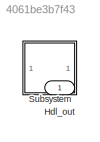
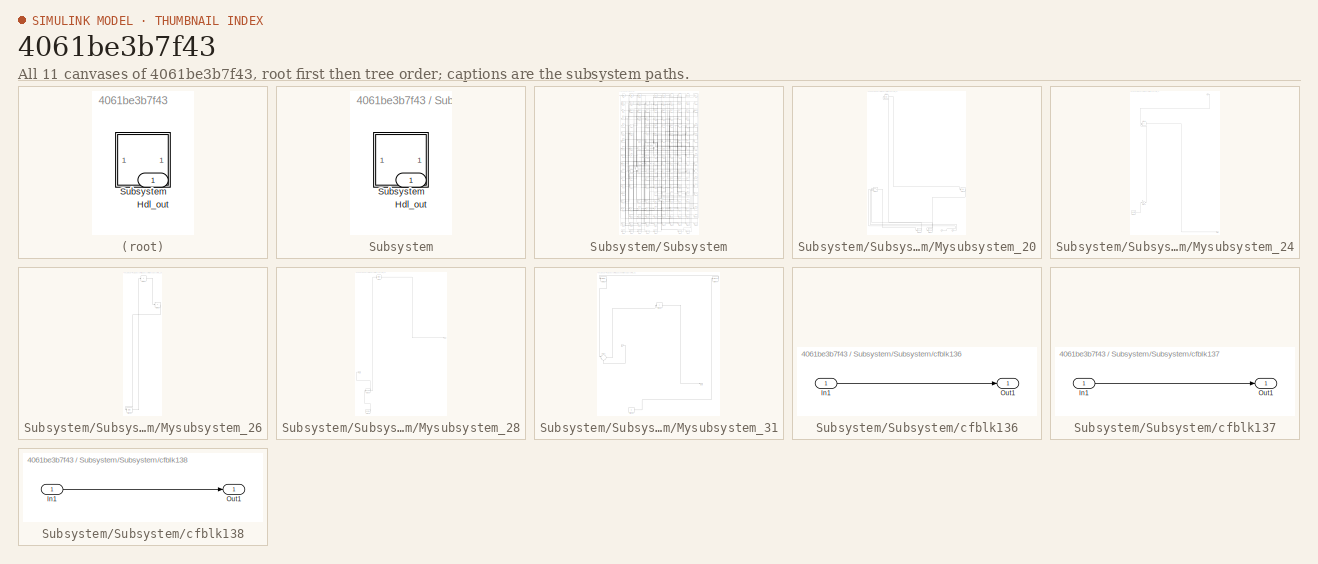
[diagram: thumbnail index - all 11 canvases of the model, root first then tree order]
MODEL slx_4061be3b7f43
KIND model
CONFIG AbsTol = auto
CONFIG EnableMultiTasking = off
CONFIG FixedStep = auto
CONFIG MaxStep = auto
CONFIG MinStep = auto
CONFIG RelTol = 1e-3
CONFIG SampleTimeConstraint = Unconstrained
CONFIG SolverName = VariableStepAuto
CONFIG StartTime = 0.0
CONFIG StopTime = 10.0
BLOCK [Outport] Hdl_out
  OutDataTypeStr = uint8
BLOCK [SubSystem] Subsystem
BLOCK [Outport] Subsystem/Hdl_out
  OutDataTypeStr = uint8
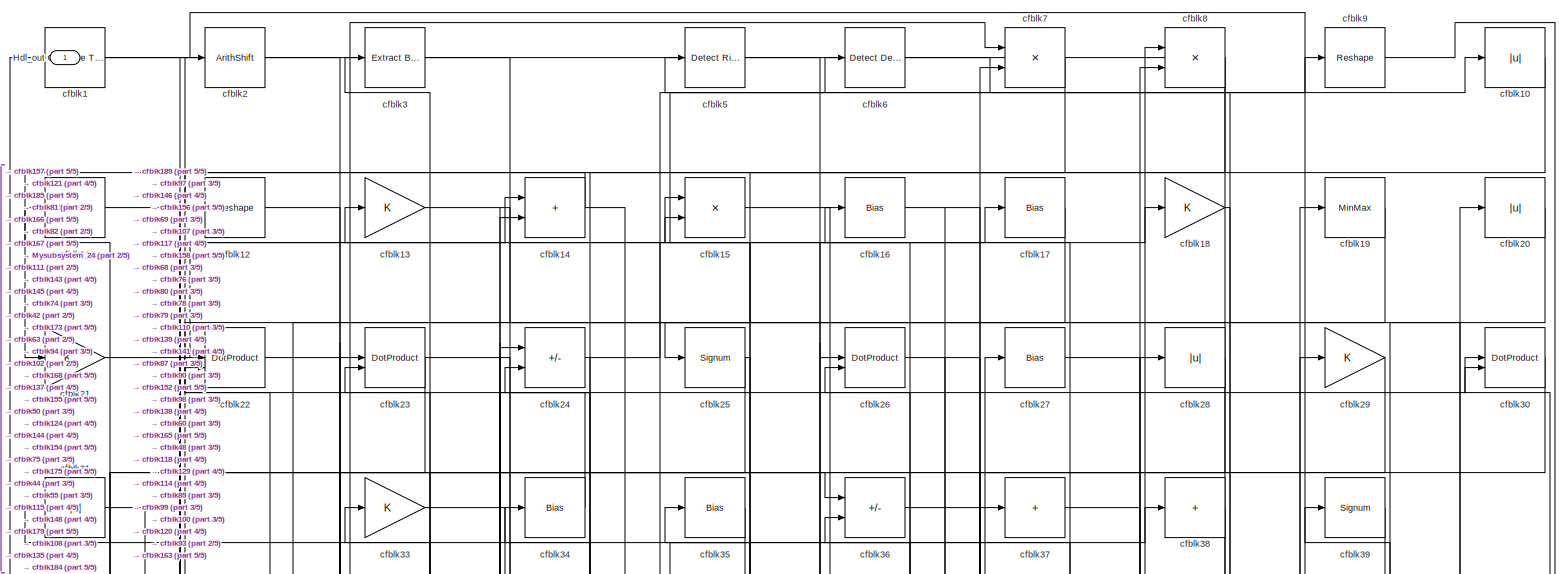
[diagram: Subsystem/Subsystem - part 1/5, full width, top band]
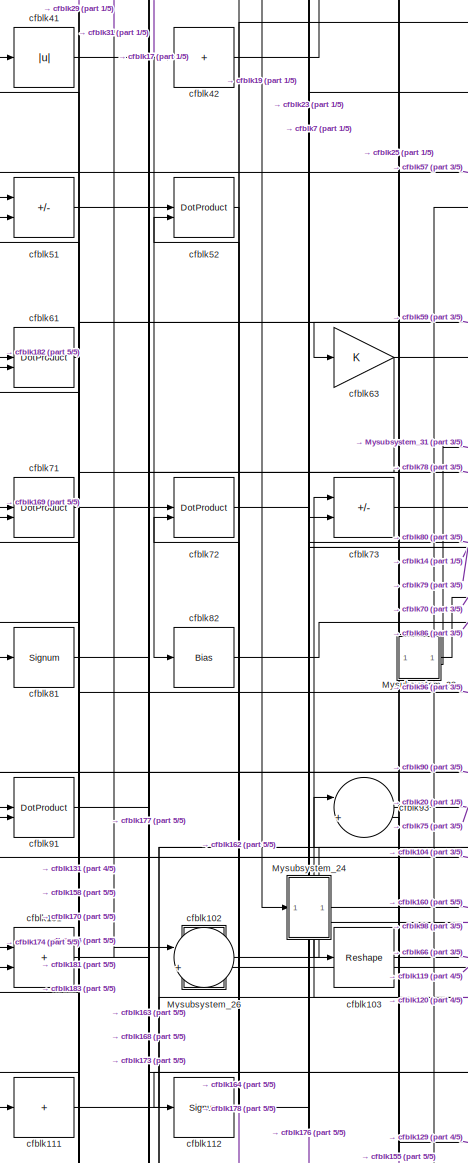
[diagram: Subsystem/Subsystem - part 2/5, middle left region]
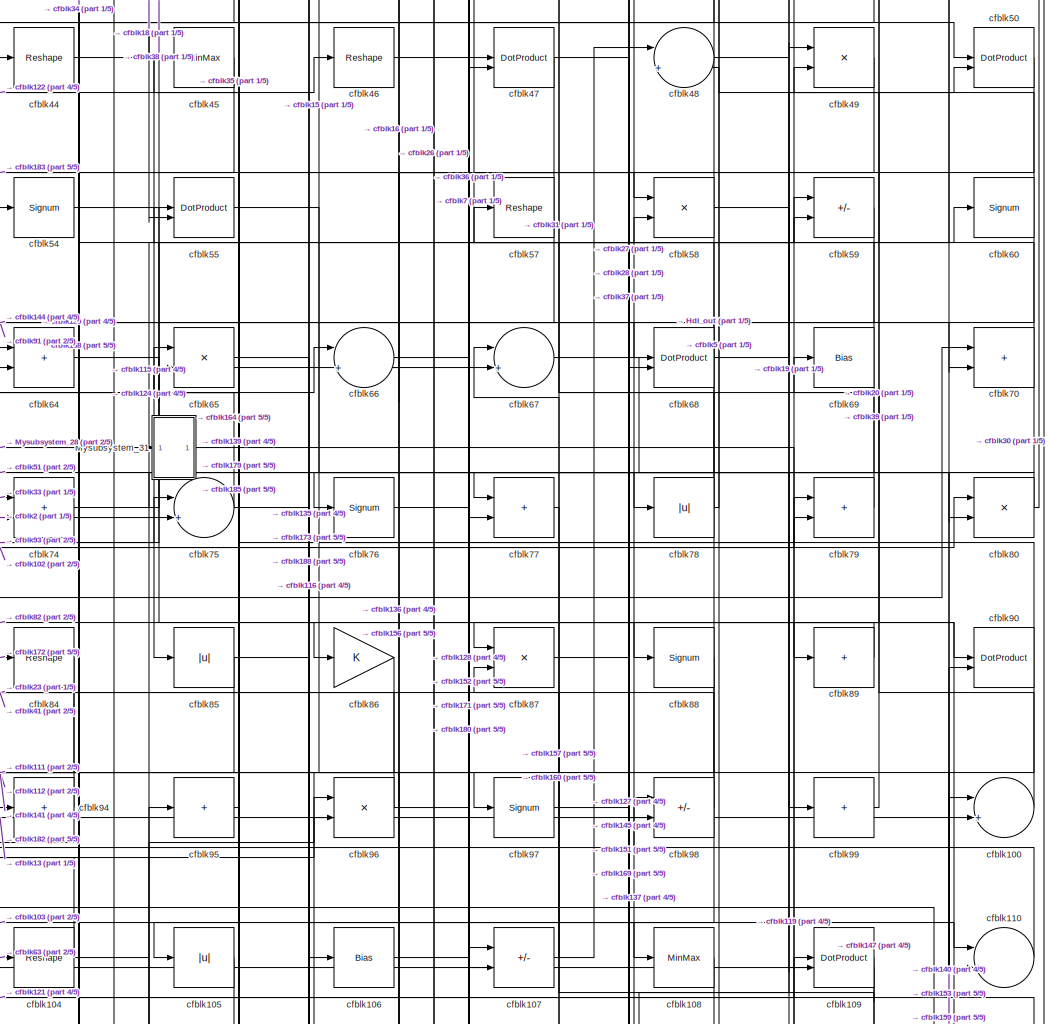
[diagram: Subsystem/Subsystem - part 3/5, central region]
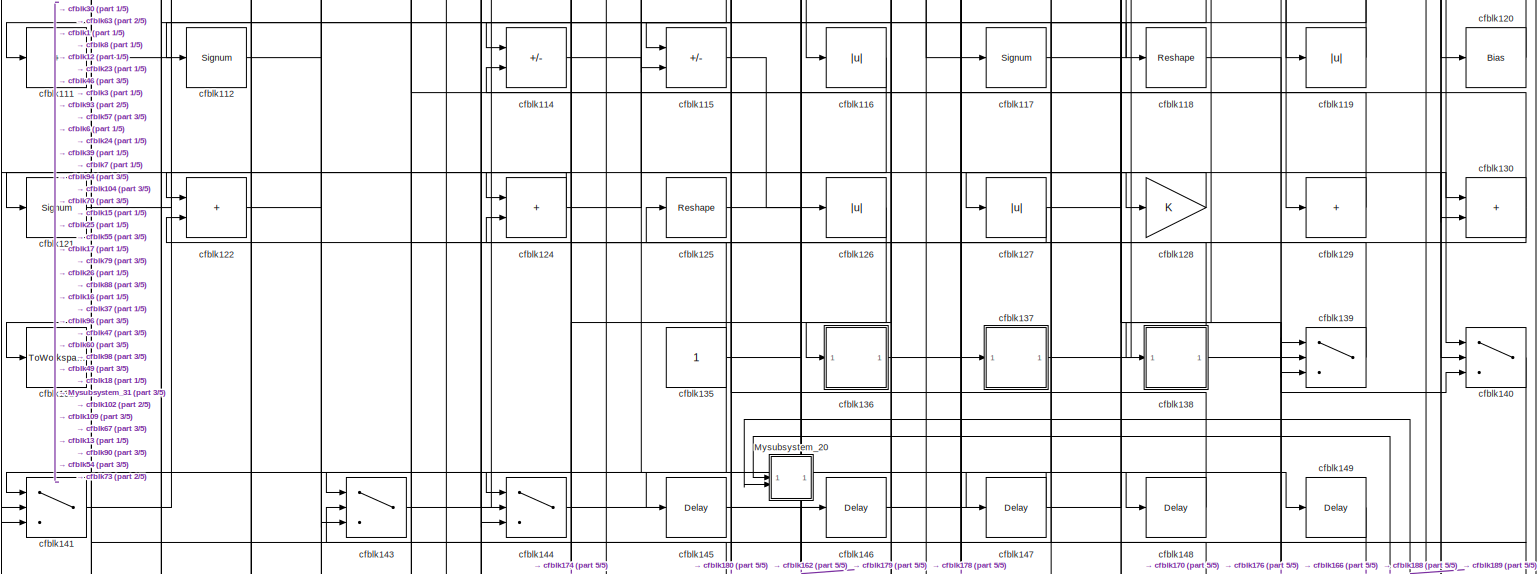
[diagram: Subsystem/Subsystem - part 4/5, full width, bottom band]
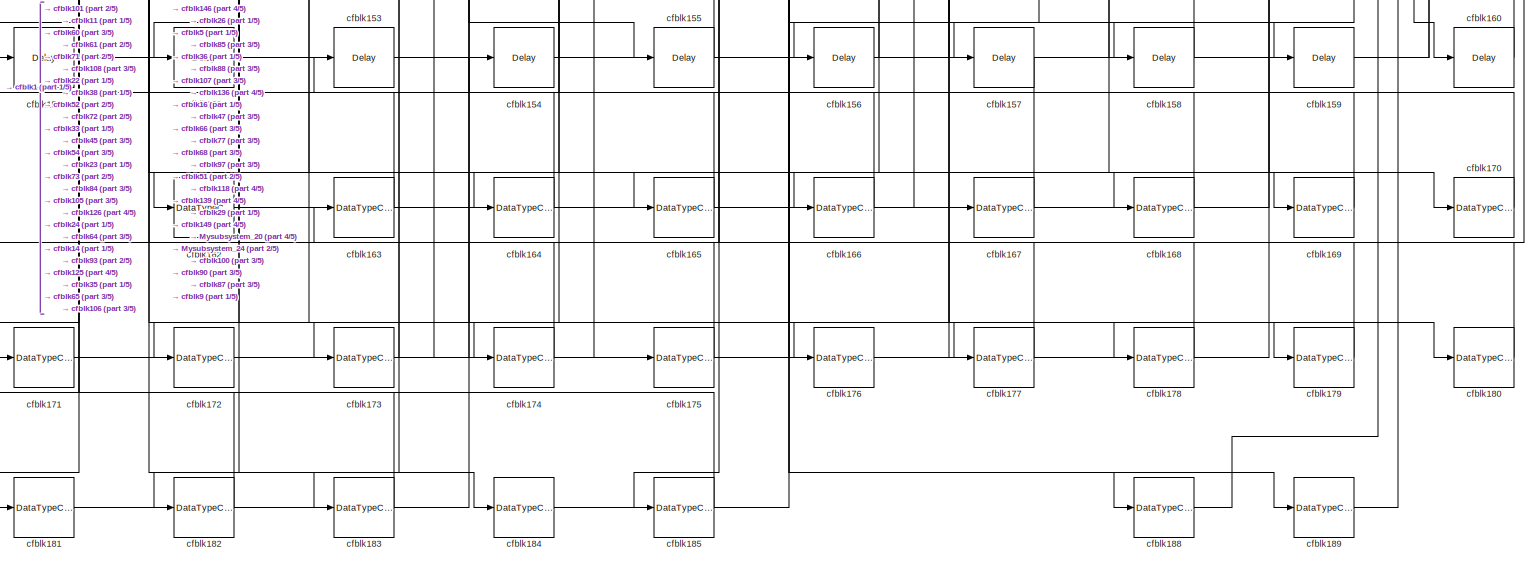
[diagram: Subsystem/Subsystem - part 5/5, full width, bottom band]
BLOCK [SubSystem] Subsystem/Subsystem
BLOCK [Outport] Subsystem/Subsystem/Hdl_out
  OutDataTypeStr = uint8
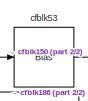
[diagram: Subsystem/Subsystem/Mysubsystem_20 - part 1/2, top left region]
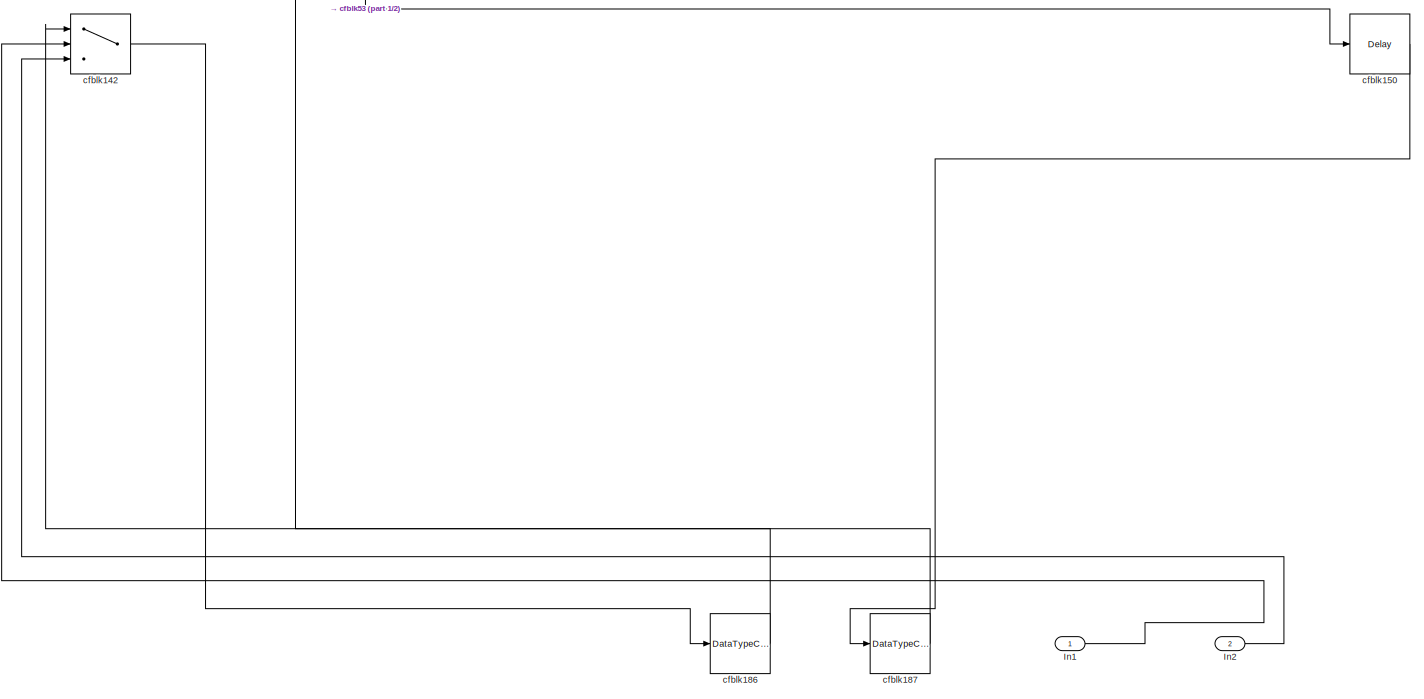
[diagram: Subsystem/Subsystem/Mysubsystem_20 - part 2/2, full width, bottom band]
BLOCK [SubSystem] Subsystem/Subsystem/Mysubsystem_20
  RTWFcnName = Mysubsystem_20
  RTWFcnNameOpts = User specified
  RTWFileNameOpts = Use function name
  RTWSystemCode = Reusable function
  TreatAsAtomicUnit = on
BLOCK [Inport] Subsystem/Subsystem/Mysubsystem_20/In1
BLOCK [Inport] Subsystem/Subsystem/Mysubsystem_20/In2
  Port = 2
BLOCK [Switch] Subsystem/Subsystem/Mysubsystem_20/cfblk142
  InputSameDT = off
  SaturateOnIntegerOverflow = off
BLOCK [Delay] Subsystem/Subsystem/Mysubsystem_20/cfblk150
  InputPortMap = u0
  SampleTime = 1
BLOCK [DataTypeConversion] Subsystem/Subsystem/Mysubsystem_20/cfblk186
  OutDataTypeStr = uint8
  RndMeth = Floor
  SaturateOnIntegerOverflow = off
BLOCK [DataTypeConversion] Subsystem/Subsystem/Mysubsystem_20/cfblk187
  OutDataTypeStr = uint8
  RndMeth = Floor
  SaturateOnIntegerOverflow = off
BLOCK [Bias] Subsystem/Subsystem/Mysubsystem_20/cfblk53
  Bias = 0.0
  SaturateOnIntegerOverflow = off
BLOCK [SubSystem] Subsystem/Subsystem/Mysubsystem_24
  RTWFcnName = Mysubsystem_24
  RTWFcnNameOpts = User specified
  RTWFileNameOpts = Use function name
  RTWSystemCode = Reusable function
  TreatAsAtomicUnit = on
BLOCK [Inport] Subsystem/Subsystem/Mysubsystem_24/In1
BLOCK [Outport] Subsystem/Subsystem/Mysubsystem_24/Out1
BLOCK [Gain] Subsystem/Subsystem/Mysubsystem_24/cfblk123
BLOCK [Reference] Subsystem/Subsystem/Mysubsystem_24/cfblk132  REF=hdlsllib/Sources/Counter
Free-Running
  SourceBlock = hdlsllib/Sources/Counter\nFree-Running
  SourceType = Counter Free-Running
BLOCK [Sum] Subsystem/Subsystem/Mysubsystem_24/cfblk43
  IconShape = rectangular
BLOCK [SubSystem] Subsystem/Subsystem/Mysubsystem_26
  RTWFcnName = Mysubsystem_26
  RTWFcnNameOpts = User specified
  RTWFileNameOpts = Use function name
  RTWSystemCode = Reusable function
  TreatAsAtomicUnit = on
BLOCK [Delay] Subsystem/Subsystem/Mysubsystem_26/cfblk161
  InputPortMap = u0
  SampleTime = 1
BLOCK [Sum] Subsystem/Subsystem/Mysubsystem_26/cfblk62
  IconShape = rectangular
  Inputs = +
BLOCK [Sum] Subsystem/Subsystem/Mysubsystem_26/cfblk83
  IconShape = rectangular
  Inputs = +
BLOCK [SubSystem] Subsystem/Subsystem/Mysubsystem_28
  RTWFcnName = Mysubsystem_28
  RTWFcnNameOpts = User specified
  RTWFileNameOpts = Use function name
  RTWSystemCode = Reusable function
  TreatAsAtomicUnit = on
BLOCK [Outport] Subsystem/Subsystem/Mysubsystem_28/Out2
  Port = 2
BLOCK [Reshape] Subsystem/Subsystem/Mysubsystem_28/cfblk113
BLOCK [Reference] Subsystem/Subsystem/Mysubsystem_28/cfblk133  REF=hdlsllib/Sources/Counter
Limited
  SourceBlock = hdlsllib/Sources/Counter\nLimited
  SourceType = Counter Limited
BLOCK [Reference] Subsystem/Subsystem/Mysubsystem_28/cfblk4  REF=hdlsllib/Logic and Bit
Operations/Bit Slice
  SourceBlock = hdlsllib/Logic and Bit\nOperations/Bit Slice
  SourceType = Bit Slice
BLOCK [Outport] Subsystem/Subsystem/Mysubsystem_28/y
BLOCK [SubSystem] Subsystem/Subsystem/Mysubsystem_31
  RTWFcnName = Mysubsystem_31
  RTWFcnNameOpts = User specified
  RTWFileNameOpts = Use function name
  RTWSystemCode = Reusable function
  TreatAsAtomicUnit = on
BLOCK [Inport] Subsystem/Subsystem/Mysubsystem_31/In1
BLOCK [Outport] Subsystem/Subsystem/Mysubsystem_31/Out1
BLOCK [Constant] Subsystem/Subsystem/Mysubsystem_31/cfblk134
  SampleTime = -1
BLOCK [MinMax] Subsystem/Subsystem/Mysubsystem_31/cfblk32
BLOCK [Signum] Subsystem/Subsystem/Mysubsystem_31/cfblk40
BLOCK [Sum] Subsystem/Subsystem/Mysubsystem_31/cfblk56
  IconShape = rectangular
  Inputs = +
BLOCK [Sum] Subsystem/Subsystem/Mysubsystem_31/cfblk92
  Inputs = |++
BLOCK [Reference] Subsystem/Subsystem/cfblk1  REF=hdlsllib/Logic and Bit
Operations/Compare
To Zero
  SourceBlock = hdlsllib/Logic and Bit\nOperations/Compare\nTo Zero
  SourceType = Compare To Zero
BLOCK [Abs] Subsystem/Subsystem/cfblk10
  OutDataTypeStr = uint8
  SaturateOnIntegerOverflow = off
BLOCK [Sum] Subsystem/Subsystem/cfblk100
  Inputs = |++
  OutDataTypeStr = uint8
BLOCK [Sum] Subsystem/Subsystem/cfblk101
  IconShape = rectangular
  OutDataTypeStr = uint8
BLOCK [Sum] Subsystem/Subsystem/cfblk102
  Inputs = |++
  OutDataTypeStr = uint8
BLOCK [Reshape] Subsystem/Subsystem/cfblk103
BLOCK [Reshape] Subsystem/Subsystem/cfblk104
BLOCK [Abs] Subsystem/Subsystem/cfblk105
  OutDataTypeStr = uint8
  SaturateOnIntegerOverflow = off
BLOCK [Bias] Subsystem/Subsystem/cfblk106
  Bias = 0.0
  SaturateOnIntegerOverflow = off
BLOCK [Sum] Subsystem/Subsystem/cfblk107
  IconShape = rectangular
  Inputs = +-
  OutDataTypeStr = uint8
BLOCK [MinMax] Subsystem/Subsystem/cfblk108
  OutDataTypeStr = uint8
BLOCK [DotProduct] Subsystem/Subsystem/cfblk109
  OutDataTypeStr = uint8
BLOCK [MinMax] Subsystem/Subsystem/cfblk11
  OutDataTypeStr = uint8
BLOCK [Sum] Subsystem/Subsystem/cfblk110
  Inputs = |++
  OutDataTypeStr = uint8
BLOCK [Sum] Subsystem/Subsystem/cfblk111
  IconShape = rectangular
  Inputs = +
  OutDataTypeStr = uint8
BLOCK [Signum] Subsystem/Subsystem/cfblk112
BLOCK [Sum] Subsystem/Subsystem/cfblk114
  IconShape = rectangular
  Inputs = +-
  OutDataTypeStr = uint8
BLOCK [Sum] Subsystem/Subsystem/cfblk115
  IconShape = rectangular
  Inputs = +-
  OutDataTypeStr = uint8
BLOCK [Abs] Subsystem/Subsystem/cfblk116
  OutDataTypeStr = uint8
  SaturateOnIntegerOverflow = off
BLOCK [Signum] Subsystem/Subsystem/cfblk117
BLOCK [Reshape] Subsystem/Subsystem/cfblk118
BLOCK [Abs] Subsystem/Subsystem/cfblk119
  OutDataTypeStr = uint8
  SaturateOnIntegerOverflow = off
BLOCK [Reshape] Subsystem/Subsystem/cfblk12
BLOCK [Bias] Subsystem/Subsystem/cfblk120
  Bias = 0.0
  SaturateOnIntegerOverflow = off
BLOCK [Signum] Subsystem/Subsystem/cfblk121
BLOCK [Sum] Subsystem/Subsystem/cfblk122
  IconShape = rectangular
  OutDataTypeStr = uint8
BLOCK [Sum] Subsystem/Subsystem/cfblk124
  IconShape = rectangular
  OutDataTypeStr = uint8
BLOCK [Reshape] Subsystem/Subsystem/cfblk125
BLOCK [Abs] Subsystem/Subsystem/cfblk126
  OutDataTypeStr = uint8
  SaturateOnIntegerOverflow = off
BLOCK [Abs] Subsystem/Subsystem/cfblk127
  OutDataTypeStr = uint8
  SaturateOnIntegerOverflow = off
BLOCK [Gain] Subsystem/Subsystem/cfblk128
  OutDataTypeStr = uint8
BLOCK [Sum] Subsystem/Subsystem/cfblk129
  IconShape = rectangular
  Inputs = +
  OutDataTypeStr = uint8
BLOCK [Gain] Subsystem/Subsystem/cfblk13
  OutDataTypeStr = uint8
BLOCK [Sum] Subsystem/Subsystem/cfblk130
  IconShape = rectangular
  OutDataTypeStr = uint8
BLOCK [ToWorkspace] Subsystem/Subsystem/cfblk131
  MaxDataPoints = inf
  SampleTime = -1
  SaveFormat = Timeseries
  VariableName = simout
BLOCK [Constant] Subsystem/Subsystem/cfblk135
  OutDataTypeStr = uint8
  SampleTime = -1
BLOCK [SubSystem] Subsystem/Subsystem/cfblk136
  LibrarySourceBlock = hdlsllib/Ports &\nSubsystems/Subsystem
BLOCK [Inport] Subsystem/Subsystem/cfblk136/In1
BLOCK [Outport] Subsystem/Subsystem/cfblk136/Out1
BLOCK [SubSystem] Subsystem/Subsystem/cfblk137
  LibrarySourceBlock = hdlsllib/Ports &\nSubsystems/Subsystem
BLOCK [Inport] Subsystem/Subsystem/cfblk137/In1
BLOCK [Outport] Subsystem/Subsystem/cfblk137/Out1
BLOCK [SubSystem] Subsystem/Subsystem/cfblk138
  LibrarySourceBlock = hdlsllib/Ports &\nSubsystems/Subsystem
BLOCK [Inport] Subsystem/Subsystem/cfblk138/In1
BLOCK [Outport] Subsystem/Subsystem/cfblk138/Out1
BLOCK [Switch] Subsystem/Subsystem/cfblk139
  InputSameDT = off
  OutDataTypeStr = uint8
  SaturateOnIntegerOverflow = off
BLOCK [Sum] Subsystem/Subsystem/cfblk14
  IconShape = rectangular
  OutDataTypeStr = uint8
BLOCK [Switch] Subsystem/Subsystem/cfblk140
  InputSameDT = off
  OutDataTypeStr = uint8
  SaturateOnIntegerOverflow = off
BLOCK [Switch] Subsystem/Subsystem/cfblk141
  InputSameDT = off
  OutDataTypeStr = uint8
  SaturateOnIntegerOverflow = off
BLOCK [Switch] Subsystem/Subsystem/cfblk143
  InputSameDT = off
  OutDataTypeStr = uint8
  SaturateOnIntegerOverflow = off
BLOCK [Switch] Subsystem/Subsystem/cfblk144
  InputSameDT = off
  OutDataTypeStr = uint8
  SaturateOnIntegerOverflow = off
BLOCK [Delay] Subsystem/Subsystem/cfblk145
  InputPortMap = u0
  SampleTime = 1
BLOCK [Delay] Subsystem/Subsystem/cfblk146
  InputPortMap = u0
  SampleTime = 1
BLOCK [Delay] Subsystem/Subsystem/cfblk147
  InputPortMap = u0
  SampleTime = 1
BLOCK [Delay] Subsystem/Subsystem/cfblk148
  InputPortMap = u0
  SampleTime = 1
BLOCK [Delay] Subsystem/Subsystem/cfblk149
  InputPortMap = u0
  SampleTime = 1
BLOCK [Product] Subsystem/Subsystem/cfblk15
  Inputs = */
  OutDataTypeStr = uint8
  RndMeth = Zero
  SaturateOnIntegerOverflow = on
BLOCK [Delay] Subsystem/Subsystem/cfblk151
  InputPortMap = u0
  SampleTime = 1
BLOCK [Delay] Subsystem/Subsystem/cfblk152
  InputPortMap = u0
  SampleTime = 1
BLOCK [Delay] Subsystem/Subsystem/cfblk153
  InputPortMap = u0
  SampleTime = 1
BLOCK [Delay] Subsystem/Subsystem/cfblk154
  InputPortMap = u0
  SampleTime = 1
BLOCK [Delay] Subsystem/Subsystem/cfblk155
  InputPortMap = u0
  SampleTime = 1
BLOCK [Delay] Subsystem/Subsystem/cfblk156
  InputPortMap = u0
  SampleTime = 1
BLOCK [Delay] Subsystem/Subsystem/cfblk157
  InputPortMap = u0
  SampleTime = 1
BLOCK [Delay] Subsystem/Subsystem/cfblk158
  InputPortMap = u0
  SampleTime = 1
BLOCK [Delay] Subsystem/Subsystem/cfblk159
  InputPortMap = u0
  SampleTime = 1
BLOCK [Bias] Subsystem/Subsystem/cfblk16
  Bias = 0.0
  SaturateOnIntegerOverflow = off
BLOCK [Delay] Subsystem/Subsystem/cfblk160
  InputPortMap = u0
  SampleTime = 1
BLOCK [DataTypeConversion] Subsystem/Subsystem/cfblk162
  OutDataTypeStr = uint8
  RndMeth = Floor
  SaturateOnIntegerOverflow = off
BLOCK [DataTypeConversion] Subsystem/Subsystem/cfblk163
  OutDataTypeStr = uint8
  RndMeth = Floor
  SaturateOnIntegerOverflow = off
BLOCK [DataTypeConversion] Subsystem/Subsystem/cfblk164
  OutDataTypeStr = uint8
  RndMeth = Floor
  SaturateOnIntegerOverflow = off
BLOCK [DataTypeConversion] Subsystem/Subsystem/cfblk165
  OutDataTypeStr = uint8
  RndMeth = Floor
  SaturateOnIntegerOverflow = off
BLOCK [DataTypeConversion] Subsystem/Subsystem/cfblk166
  OutDataTypeStr = uint8
  RndMeth = Floor
  SaturateOnIntegerOverflow = off
BLOCK [DataTypeConversion] Subsystem/Subsystem/cfblk167
  OutDataTypeStr = uint8
  RndMeth = Floor
  SaturateOnIntegerOverflow = off
BLOCK [DataTypeConversion] Subsystem/Subsystem/cfblk168
  OutDataTypeStr = uint8
  RndMeth = Floor
  SaturateOnIntegerOverflow = off
BLOCK [DataTypeConversion] Subsystem/Subsystem/cfblk169
  OutDataTypeStr = uint8
  RndMeth = Floor
  SaturateOnIntegerOverflow = off
BLOCK [Bias] Subsystem/Subsystem/cfblk17
  Bias = 0.0
  SaturateOnIntegerOverflow = off
BLOCK [DataTypeConversion] Subsystem/Subsystem/cfblk170
  OutDataTypeStr = uint8
  RndMeth = Floor
  SaturateOnIntegerOverflow = off
BLOCK [DataTypeConversion] Subsystem/Subsystem/cfblk171
  OutDataTypeStr = uint8
  RndMeth = Floor
  SaturateOnIntegerOverflow = off
BLOCK [DataTypeConversion] Subsystem/Subsystem/cfblk172
  OutDataTypeStr = uint8
  RndMeth = Floor
  SaturateOnIntegerOverflow = off
BLOCK [DataTypeConversion] Subsystem/Subsystem/cfblk173
  OutDataTypeStr = uint8
  RndMeth = Floor
  SaturateOnIntegerOverflow = off
BLOCK [DataTypeConversion] Subsystem/Subsystem/cfblk174
  OutDataTypeStr = uint8
  RndMeth = Floor
  SaturateOnIntegerOverflow = off
BLOCK [DataTypeConversion] Subsystem/Subsystem/cfblk175
  OutDataTypeStr = uint8
  RndMeth = Floor
  SaturateOnIntegerOverflow = off
BLOCK [DataTypeConversion] Subsystem/Subsystem/cfblk176
  OutDataTypeStr = uint8
  RndMeth = Floor
  SaturateOnIntegerOverflow = off
BLOCK [DataTypeConversion] Subsystem/Subsystem/cfblk177
  OutDataTypeStr = uint8
  RndMeth = Floor
  SaturateOnIntegerOverflow = off
BLOCK [DataTypeConversion] Subsystem/Subsystem/cfblk178
  OutDataTypeStr = uint8
  RndMeth = Floor
  SaturateOnIntegerOverflow = off
BLOCK [DataTypeConversion] Subsystem/Subsystem/cfblk179
  OutDataTypeStr = uint8
  RndMeth = Floor
  SaturateOnIntegerOverflow = off
BLOCK [Gain] Subsystem/Subsystem/cfblk18
  OutDataTypeStr = uint8
BLOCK [DataTypeConversion] Subsystem/Subsystem/cfblk180
  OutDataTypeStr = uint8
  RndMeth = Floor
  SaturateOnIntegerOverflow = off
BLOCK [DataTypeConversion] Subsystem/Subsystem/cfblk181
  OutDataTypeStr = uint8
  RndMeth = Floor
  SaturateOnIntegerOverflow = off
BLOCK [DataTypeConversion] Subsystem/Subsystem/cfblk182
  OutDataTypeStr = uint8
  RndMeth = Floor
  SaturateOnIntegerOverflow = off
BLOCK [DataTypeConversion] Subsystem/Subsystem/cfblk183
  OutDataTypeStr = uint8
  RndMeth = Floor
  SaturateOnIntegerOverflow = off
BLOCK [DataTypeConversion] Subsystem/Subsystem/cfblk184
  OutDataTypeStr = uint8
  RndMeth = Floor
  SaturateOnIntegerOverflow = off
BLOCK [DataTypeConversion] Subsystem/Subsystem/cfblk185
  OutDataTypeStr = uint8
  RndMeth = Floor
  SaturateOnIntegerOverflow = off
BLOCK [DataTypeConversion] Subsystem/Subsystem/cfblk188
  OutDataTypeStr = uint8
  RndMeth = Floor
  SaturateOnIntegerOverflow = off
BLOCK [DataTypeConversion] Subsystem/Subsystem/cfblk189
  OutDataTypeStr = uint8
  RndMeth = Floor
  SaturateOnIntegerOverflow = off
BLOCK [MinMax] Subsystem/Subsystem/cfblk19
  OutDataTypeStr = uint8
BLOCK [ArithShift] Subsystem/Subsystem/cfblk2
  BitShiftNumber = 8
  InputPortMap = u0
BLOCK [Abs] Subsystem/Subsystem/cfblk20
  OutDataTypeStr = uint8
  SaturateOnIntegerOverflow = off
BLOCK [Gain] Subsystem/Subsystem/cfblk21
  OutDataTypeStr = uint8
BLOCK [DotProduct] Subsystem/Subsystem/cfblk22
  OutDataTypeStr = uint8
BLOCK [DotProduct] Subsystem/Subsystem/cfblk23
  OutDataTypeStr = uint8
BLOCK [Sum] Subsystem/Subsystem/cfblk24
  IconShape = rectangular
  Inputs = +-
  OutDataTypeStr = uint8
BLOCK [Signum] Subsystem/Subsystem/cfblk25
BLOCK [DotProduct] Subsystem/Subsystem/cfblk26
  OutDataTypeStr = uint8
BLOCK [Bias] Subsystem/Subsystem/cfblk27
  Bias = 0.0
  SaturateOnIntegerOverflow = off
BLOCK [Abs] Subsystem/Subsystem/cfblk28
  OutDataTypeStr = uint8
  SaturateOnIntegerOverflow = off
BLOCK [Gain] Subsystem/Subsystem/cfblk29
  OutDataTypeStr = uint8
BLOCK [Reference] Subsystem/Subsystem/cfblk3  REF=simulink/Logic and Bit
Operations/Extract Bits
  LibrarySourceBlock = hdlsllib/Logic and Bit\nOperations/Extract Bits
  SourceBlock = simulink/Logic and Bit\nOperations/Extract Bits
  SourceType = Extract Bits
BLOCK [DotProduct] Subsystem/Subsystem/cfblk30
  OutDataTypeStr = uint8
BLOCK [Abs] Subsystem/Subsystem/cfblk31
  OutDataTypeStr = uint8
  SaturateOnIntegerOverflow = off
BLOCK [Gain] Subsystem/Subsystem/cfblk33
  OutDataTypeStr = uint8
BLOCK [Bias] Subsystem/Subsystem/cfblk34
  Bias = 0.0
  SaturateOnIntegerOverflow = off
BLOCK [Bias] Subsystem/Subsystem/cfblk35
  Bias = 0.0
  SaturateOnIntegerOverflow = off
BLOCK [Sum] Subsystem/Subsystem/cfblk36
  IconShape = rectangular
  Inputs = +-
  OutDataTypeStr = uint8
BLOCK [Sum] Subsystem/Subsystem/cfblk37
  IconShape = rectangular
  Inputs = +
  OutDataTypeStr = uint8
BLOCK [Sum] Subsystem/Subsystem/cfblk38
  IconShape = rectangular
  Inputs = +
  OutDataTypeStr = uint8
BLOCK [Signum] Subsystem/Subsystem/cfblk39
BLOCK [Abs] Subsystem/Subsystem/cfblk41
  OutDataTypeStr = uint8
  SaturateOnIntegerOverflow = off
BLOCK [Sum] Subsystem/Subsystem/cfblk42
  IconShape = rectangular
  Inputs = +
  OutDataTypeStr = uint8
BLOCK [Reshape] Subsystem/Subsystem/cfblk44
BLOCK [MinMax] Subsystem/Subsystem/cfblk45
  OutDataTypeStr = uint8
BLOCK [Reshape] Subsystem/Subsystem/cfblk46
BLOCK [DotProduct] Subsystem/Subsystem/cfblk47
  OutDataTypeStr = uint8
BLOCK [Sum] Subsystem/Subsystem/cfblk48
  Inputs = |++
  OutDataTypeStr = uint8
BLOCK [Product] Subsystem/Subsystem/cfblk49
  Inputs = */
  OutDataTypeStr = uint8
  RndMeth = Zero
  SaturateOnIntegerOverflow = on
BLOCK [Reference] Subsystem/Subsystem/cfblk5  REF=hdlsllib/Logic and Bit
Operations/Detect Rise
Nonnegative
  SourceBlock = hdlsllib/Logic and Bit\nOperations/Detect Rise\nNonnegative
  SourceType = Detect Rise Nonnegative
BLOCK [DotProduct] Subsystem/Subsystem/cfblk50
  OutDataTypeStr = uint8
BLOCK [Sum] Subsystem/Subsystem/cfblk51
  IconShape = rectangular
  Inputs = +-
  OutDataTypeStr = uint8
BLOCK [DotProduct] Subsystem/Subsystem/cfblk52
  OutDataTypeStr = uint8
BLOCK [Signum] Subsystem/Subsystem/cfblk54
BLOCK [DotProduct] Subsystem/Subsystem/cfblk55
  OutDataTypeStr = uint8
BLOCK [Reshape] Subsystem/Subsystem/cfblk57
BLOCK [Product] Subsystem/Subsystem/cfblk58
  Inputs = */
  OutDataTypeStr = uint8
  RndMeth = Zero
  SaturateOnIntegerOverflow = on
BLOCK [Sum] Subsystem/Subsystem/cfblk59
  IconShape = rectangular
  Inputs = +-
  OutDataTypeStr = uint8
BLOCK [Reference] Subsystem/Subsystem/cfblk6  REF=simulink/Logic and Bit
Operations/Detect
Decrease
  LibrarySourceBlock = hdlsllib/Logic and Bit\nOperations/Detect\nDecrease
  SourceBlock = simulink/Logic and Bit\nOperations/Detect\nDecrease
  SourceType = Detect Decrease
BLOCK [Signum] Subsystem/Subsystem/cfblk60
BLOCK [DotProduct] Subsystem/Subsystem/cfblk61
  OutDataTypeStr = uint8
BLOCK [Gain] Subsystem/Subsystem/cfblk63
  OutDataTypeStr = uint8
BLOCK [Sum] Subsystem/Subsystem/cfblk64
  IconShape = rectangular
  OutDataTypeStr = uint8
BLOCK [Product] Subsystem/Subsystem/cfblk65
  Inputs = */
  OutDataTypeStr = uint8
  RndMeth = Zero
  SaturateOnIntegerOverflow = on
BLOCK [Sum] Subsystem/Subsystem/cfblk66
  Inputs = |++
  OutDataTypeStr = uint8
BLOCK [Sum] Subsystem/Subsystem/cfblk67
  Inputs = |++
  OutDataTypeStr = uint8
BLOCK [DotProduct] Subsystem/Subsystem/cfblk68
  OutDataTypeStr = uint8
BLOCK [Bias] Subsystem/Subsystem/cfblk69
  Bias = 0.0
  SaturateOnIntegerOverflow = off
BLOCK [Product] Subsystem/Subsystem/cfblk7
  Inputs = */
  OutDataTypeStr = uint8
  RndMeth = Zero
  SaturateOnIntegerOverflow = on
BLOCK [Sum] Subsystem/Subsystem/cfblk70
  IconShape = rectangular
  OutDataTypeStr = uint8
BLOCK [DotProduct] Subsystem/Subsystem/cfblk71
  OutDataTypeStr = uint8
BLOCK [DotProduct] Subsystem/Subsystem/cfblk72
  OutDataTypeStr = uint8
BLOCK [Sum] Subsystem/Subsystem/cfblk73
  IconShape = rectangular
  Inputs = +-
  OutDataTypeStr = uint8
BLOCK [Sum] Subsystem/Subsystem/cfblk74
  IconShape = rectangular
  OutDataTypeStr = uint8
BLOCK [Sum] Subsystem/Subsystem/cfblk75
  Inputs = |++
  OutDataTypeStr = uint8
BLOCK [Signum] Subsystem/Subsystem/cfblk76
BLOCK [Sum] Subsystem/Subsystem/cfblk77
  IconShape = rectangular
  OutDataTypeStr = uint8
BLOCK [Abs] Subsystem/Subsystem/cfblk78
  OutDataTypeStr = uint8
  SaturateOnIntegerOverflow = off
BLOCK [Sum] Subsystem/Subsystem/cfblk79
  IconShape = rectangular
  OutDataTypeStr = uint8
BLOCK [Product] Subsystem/Subsystem/cfblk8
  Inputs = */
  OutDataTypeStr = uint8
  RndMeth = Zero
  SaturateOnIntegerOverflow = on
BLOCK [Product] Subsystem/Subsystem/cfblk80
  Inputs = */
  OutDataTypeStr = uint8
  RndMeth = Zero
  SaturateOnIntegerOverflow = on
BLOCK [Signum] Subsystem/Subsystem/cfblk81
BLOCK [Bias] Subsystem/Subsystem/cfblk82
  Bias = 0.0
  SaturateOnIntegerOverflow = off
BLOCK [Reshape] Subsystem/Subsystem/cfblk84
BLOCK [Abs] Subsystem/Subsystem/cfblk85
  OutDataTypeStr = uint8
  SaturateOnIntegerOverflow = off
BLOCK [Gain] Subsystem/Subsystem/cfblk86
  OutDataTypeStr = uint8
BLOCK [Product] Subsystem/Subsystem/cfblk87
  Inputs = */
  OutDataTypeStr = uint8
  RndMeth = Zero
  SaturateOnIntegerOverflow = on
BLOCK [Signum] Subsystem/Subsystem/cfblk88
BLOCK [Sum] Subsystem/Subsystem/cfblk89
  IconShape = rectangular
  Inputs = +
  OutDataTypeStr = uint8
BLOCK [Reshape] Subsystem/Subsystem/cfblk9
BLOCK [DotProduct] Subsystem/Subsystem/cfblk90
  OutDataTypeStr = uint8
BLOCK [DotProduct] Subsystem/Subsystem/cfblk91
  OutDataTypeStr = uint8
BLOCK [Sum] Subsystem/Subsystem/cfblk93
  Inputs = |++
  OutDataTypeStr = uint8
BLOCK [Sum] Subsystem/Subsystem/cfblk94
  IconShape = rectangular
  Inputs = +
  OutDataTypeStr = uint8
BLOCK [Sum] Subsystem/Subsystem/cfblk95
  IconShape = rectangular
  Inputs = +
  OutDataTypeStr = uint8
BLOCK [Product] Subsystem/Subsystem/cfblk96
  Inputs = */
  OutDataTypeStr = uint8
  RndMeth = Zero
  SaturateOnIntegerOverflow = on
BLOCK [Signum] Subsystem/Subsystem/cfblk97
BLOCK [Sum] Subsystem/Subsystem/cfblk98
  IconShape = rectangular
  Inputs = +-
  OutDataTypeStr = uint8
BLOCK [Sum] Subsystem/Subsystem/cfblk99
  IconShape = rectangular
  Inputs = +
  OutDataTypeStr = uint8
LINE Subsystem/Subsystem/Mysubsystem_20/In1:1 -> Subsystem/Subsystem/Mysubsystem_20/cfblk142:2
LINE Subsystem/Subsystem/Mysubsystem_20/In2:1 -> Subsystem/Subsystem/Mysubsystem_20/cfblk142:3
LINE Subsystem/Subsystem/Mysubsystem_20/cfblk142:1 -> Subsystem/Subsystem/Mysubsystem_20/cfblk186:1
LINE Subsystem/Subsystem/Mysubsystem_20/cfblk150:1 -> Subsystem/Subsystem/Mysubsystem_20/cfblk187:1
LINE Subsystem/Subsystem/Mysubsystem_20/cfblk186:1 -> Subsystem/Subsystem/Mysubsystem_20/cfblk53:1
LINE Subsystem/Subsystem/Mysubsystem_20/cfblk187:1 -> Subsystem/Subsystem/Mysubsystem_20/cfblk142:1
LINE Subsystem/Subsystem/Mysubsystem_20/cfblk53:1 -> Subsystem/Subsystem/Mysubsystem_20/cfblk150:1
LINE Subsystem/Subsystem/Mysubsystem_24/In1:1 -> Subsystem/Subsystem/Mysubsystem_24/cfblk43:1
LINE Subsystem/Subsystem/Mysubsystem_24/cfblk123:1 -> Subsystem/Subsystem/Mysubsystem_24/cfblk43:2
LINE Subsystem/Subsystem/Mysubsystem_24/cfblk132:1 -> Subsystem/Subsystem/Mysubsystem_24/cfblk123:1
LINE Subsystem/Subsystem/Mysubsystem_24/cfblk43:1 -> Subsystem/Subsystem/Mysubsystem_24/Out1:1
LINE Subsystem/Subsystem/Mysubsystem_24:1 -> Subsystem/Subsystem/cfblk160:1
LINE Subsystem/Subsystem/Mysubsystem_26/cfblk161:1 -> Subsystem/Subsystem/Mysubsystem_26/cfblk62:1
LINE Subsystem/Subsystem/Mysubsystem_26/cfblk62:1 -> Subsystem/Subsystem/Mysubsystem_26/cfblk83:1
LINE Subsystem/Subsystem/Mysubsystem_26/cfblk83:1 -> Subsystem/Subsystem/Mysubsystem_26/cfblk161:1
NET Subsystem/Subsystem/Mysubsystem_28/cfblk113:1 -> Subsystem/Subsystem/Mysubsystem_28/Out2:1, Subsystem/Subsystem/Mysubsystem_28/cfblk4:1
LINE Subsystem/Subsystem/Mysubsystem_28/cfblk133:1 -> Subsystem/Subsystem/Mysubsystem_28/cfblk113:1
LINE Subsystem/Subsystem/Mysubsystem_28/cfblk4:1 -> Subsystem/Subsystem/Mysubsystem_28/y:1
LINE Subsystem/Subsystem/Mysubsystem_28:1 -> Subsystem/Subsystem/cfblk70:1
LINE Subsystem/Subsystem/Mysubsystem_28:2 -> Subsystem/Subsystem/Mysubsystem_31:1
LINE Subsystem/Subsystem/Mysubsystem_31/In1:1 -> Subsystem/Subsystem/Mysubsystem_31/cfblk92:2
LINE Subsystem/Subsystem/Mysubsystem_31/cfblk134:1 -> Subsystem/Subsystem/Mysubsystem_31/cfblk40:1
LINE Subsystem/Subsystem/Mysubsystem_31/cfblk32:1 -> Subsystem/Subsystem/Mysubsystem_31/cfblk92:1
LINE Subsystem/Subsystem/Mysubsystem_31/cfblk40:1 -> Subsystem/Subsystem/Mysubsystem_31/cfblk32:1
LINE Subsystem/Subsystem/Mysubsystem_31/cfblk56:1 -> Subsystem/Subsystem/Mysubsystem_31/Out1:1
LINE Subsystem/Subsystem/Mysubsystem_31/cfblk92:1 -> Subsystem/Subsystem/Mysubsystem_31/cfblk56:1
LINE Subsystem/Subsystem/Mysubsystem_31:1 -> Subsystem/Subsystem/cfblk119:1
LINE Subsystem/Subsystem/cfblk100:1 -> Subsystem/Subsystem/cfblk69:1
LINE Subsystem/Subsystem/cfblk101:1 -> Subsystem/Subsystem/cfblk173:1
NET Subsystem/Subsystem/cfblk102:1 -> Subsystem/Subsystem/cfblk14:2, Subsystem/Subsystem/cfblk79:1
LINE Subsystem/Subsystem/cfblk103:1 -> Subsystem/Subsystem/cfblk66:1
NET Subsystem/Subsystem/cfblk104:1 -> Subsystem/Subsystem/cfblk130:1, Subsystem/Subsystem/cfblk130:2, Subsystem/Subsystem/cfblk91:2, Subsystem/Subsystem/cfblk95:1
LINE Subsystem/Subsystem/cfblk105:1 -> Subsystem/Subsystem/cfblk164:1
NET Subsystem/Subsystem/cfblk106:1 -> Subsystem/Subsystem/cfblk47:2, Subsystem/Subsystem/cfblk59:2
NET Subsystem/Subsystem/cfblk107:1 -> Subsystem/Subsystem/cfblk48:1, Subsystem/Subsystem/cfblk57:1
LINE Subsystem/Subsystem/cfblk108:1 -> Subsystem/Subsystem/cfblk172:1
LINE Subsystem/Subsystem/cfblk109:1 -> Subsystem/Subsystem/cfblk147:1
LINE Subsystem/Subsystem/cfblk10:1 -> Subsystem/Subsystem/cfblk25:1
LINE Subsystem/Subsystem/cfblk110:1 -> Subsystem/Subsystem/cfblk98:1
LINE Subsystem/Subsystem/cfblk111:1 -> Subsystem/Subsystem/cfblk23:1
NET Subsystem/Subsystem/cfblk112:1 -> Subsystem/Subsystem/cfblk75:1, Subsystem/Subsystem/cfblk80:1
LINE Subsystem/Subsystem/cfblk114:1 -> Subsystem/Subsystem/cfblk149:1
LINE Subsystem/Subsystem/cfblk115:1 -> Subsystem/Subsystem/cfblk126:1
LINE Subsystem/Subsystem/cfblk116:1 -> Subsystem/Subsystem/cfblk141:2
LINE Subsystem/Subsystem/cfblk117:1 -> Subsystem/Subsystem/cfblk8:1
LINE Subsystem/Subsystem/cfblk118:1 -> Subsystem/Subsystem/cfblk170:1
NET Subsystem/Subsystem/cfblk119:1 -> Subsystem/Subsystem/cfblk102:2, Subsystem/Subsystem/cfblk67:1
LINE Subsystem/Subsystem/cfblk11:1 -> Subsystem/Subsystem/cfblk184:1
LINE Subsystem/Subsystem/cfblk120:1 -> Subsystem/Subsystem/cfblk73:1
LINE Subsystem/Subsystem/cfblk121:1 -> Subsystem/Subsystem/cfblk109:1
LINE Subsystem/Subsystem/cfblk122:1 -> Subsystem/Subsystem/cfblk46:1
NET Subsystem/Subsystem/cfblk124:1 -> Subsystem/Subsystem/cfblk122:1, Subsystem/Subsystem/cfblk96:2
LINE Subsystem/Subsystem/cfblk125:1 -> Subsystem/Subsystem/cfblk179:1
LINE Subsystem/Subsystem/cfblk126:1 -> Subsystem/Subsystem/cfblk174:1
NET Subsystem/Subsystem/cfblk127:1 -> Subsystem/Subsystem/cfblk122:2, Subsystem/Subsystem/cfblk60:1
LINE Subsystem/Subsystem/cfblk128:1 -> Subsystem/Subsystem/cfblk127:1
LINE Subsystem/Subsystem/cfblk129:1 -> Subsystem/Subsystem/cfblk93:1
LINE Subsystem/Subsystem/cfblk12:1 -> Subsystem/Subsystem/cfblk145:1
NET Subsystem/Subsystem/cfblk130:1 -> Subsystem/Subsystem/cfblk124:2, Subsystem/Subsystem/cfblk94:1
NET Subsystem/Subsystem/cfblk135:1 -> Subsystem/Subsystem/cfblk114:2, Subsystem/Subsystem/cfblk143:1, Subsystem/Subsystem/cfblk144:3, Subsystem/Subsystem/cfblk17:1, Subsystem/Subsystem/cfblk79:2
LINE Subsystem/Subsystem/cfblk136/In1:1 -> Subsystem/Subsystem/cfblk136/Out1:1
NET Subsystem/Subsystem/cfblk136:1 -> Subsystem/Subsystem/cfblk148:1, Subsystem/Subsystem/cfblk178:1
LINE Subsystem/Subsystem/cfblk137/In1:1 -> Subsystem/Subsystem/cfblk137/Out1:1
LINE Subsystem/Subsystem/cfblk137:1 -> Subsystem/Subsystem/cfblk49:1
LINE Subsystem/Subsystem/cfblk138/In1:1 -> Subsystem/Subsystem/cfblk138/Out1:1
NET Subsystem/Subsystem/cfblk138:1 -> Subsystem/Subsystem/cfblk140:3, Subsystem/Subsystem/cfblk3:1
LINE Subsystem/Subsystem/cfblk139:1 -> Subsystem/Subsystem/cfblk55:1
NET Subsystem/Subsystem/cfblk13:1 -> Subsystem/Subsystem/cfblk100:2, Subsystem/Subsystem/cfblk120:1
LINE Subsystem/Subsystem/cfblk140:1 -> Subsystem/Subsystem/cfblk143:2
NET Subsystem/Subsystem/cfblk141:1 -> Subsystem/Subsystem/cfblk8:2, Subsystem/Subsystem/cfblk96:1
NET Subsystem/Subsystem/cfblk143:1 -> Subsystem/Subsystem/cfblk30:2, Subsystem/Subsystem/cfblk6:1
LINE Subsystem/Subsystem/cfblk144:1 -> Subsystem/Subsystem/cfblk37:1
LINE Subsystem/Subsystem/cfblk145:1 -> Subsystem/Subsystem/cfblk98:2
LINE Subsystem/Subsystem/cfblk146:1 -> Subsystem/Subsystem/cfblk26:2
LINE Subsystem/Subsystem/cfblk147:1 -> Subsystem/Subsystem/cfblk141:1
LINE Subsystem/Subsystem/cfblk148:1 -> Subsystem/Subsystem/cfblk15:2
LINE Subsystem/Subsystem/cfblk149:1 -> Subsystem/Subsystem/cfblk166:1
NET Subsystem/Subsystem/cfblk14:1 -> Subsystem/Subsystem/cfblk12:1, Subsystem/Subsystem/cfblk175:1
LINE Subsystem/Subsystem/cfblk151:1 -> Subsystem/Subsystem/cfblk68:2
LINE Subsystem/Subsystem/cfblk152:1 -> Subsystem/Subsystem/cfblk107:1
LINE Subsystem/Subsystem/cfblk153:1 -> Subsystem/Subsystem/cfblk90:2
LINE Subsystem/Subsystem/cfblk154:1 -> Subsystem/Subsystem/cfblk24:2
LINE Subsystem/Subsystem/cfblk155:1 -> Subsystem/Subsystem/cfblk93:2
LINE Subsystem/Subsystem/cfblk156:1 -> Subsystem/Subsystem/cfblk36:2
LINE Subsystem/Subsystem/cfblk157:1 -> Subsystem/Subsystem/cfblk1:1
LINE Subsystem/Subsystem/cfblk158:1 -> Subsystem/Subsystem/cfblk51:2
LINE Subsystem/Subsystem/cfblk159:1 -> Subsystem/Subsystem/cfblk100:1
LINE Subsystem/Subsystem/cfblk15:1 -> Subsystem/Subsystem/cfblk97:1
LINE Subsystem/Subsystem/cfblk160:1 -> Subsystem/Subsystem/cfblk87:2
LINE Subsystem/Subsystem/cfblk162:1 -> Subsystem/Subsystem/cfblk146:1
LINE Subsystem/Subsystem/cfblk163:1 -> Subsystem/Subsystem/cfblk52:1
LINE Subsystem/Subsystem/cfblk164:1 -> Subsystem/Subsystem/cfblk52:2
NET Subsystem/Subsystem/cfblk165:1 -> Subsystem/Subsystem/cfblk153:1, Subsystem/Subsystem/cfblk29:1
LINE Subsystem/Subsystem/cfblk166:1 -> Subsystem/Subsystem/cfblk22:1
LINE Subsystem/Subsystem/cfblk167:1 -> Subsystem/Subsystem/cfblk22:2
NET Subsystem/Subsystem/cfblk168:1 -> Subsystem/Subsystem/cfblk24:1, Subsystem/Subsystem/cfblk64:2
LINE Subsystem/Subsystem/cfblk169:1 -> Subsystem/Subsystem/cfblk71:1
NET Subsystem/Subsystem/cfblk16:1 -> Subsystem/Subsystem/cfblk117:1, Subsystem/Subsystem/cfblk158:1
LINE Subsystem/Subsystem/cfblk170:1 -> Subsystem/Subsystem/cfblk71:2
LINE Subsystem/Subsystem/cfblk171:1 -> Subsystem/Subsystem/cfblk47:1
LINE Subsystem/Subsystem/cfblk172:1 -> Subsystem/Subsystem/cfblk84:1
NET Subsystem/Subsystem/cfblk173:1 -> Subsystem/Subsystem/cfblk106:1, Subsystem/Subsystem/cfblk33:1, Subsystem/Subsystem/cfblk54:1
LINE Subsystem/Subsystem/cfblk174:1 -> Subsystem/Subsystem/cfblk101:1
LINE Subsystem/Subsystem/cfblk175:1 -> Subsystem/Subsystem/cfblk101:2
LINE Subsystem/Subsystem/cfblk176:1 -> Subsystem/Subsystem/cfblk139:1
LINE Subsystem/Subsystem/cfblk177:1 -> Subsystem/Subsystem/cfblk72:1
LINE Subsystem/Subsystem/cfblk178:1 -> Subsystem/Subsystem/cfblk72:2
NET Subsystem/Subsystem/cfblk179:1 -> Subsystem/Subsystem/cfblk35:1, Subsystem/Subsystem/cfblk45:1
LINE Subsystem/Subsystem/cfblk17:1 -> Subsystem/Subsystem/cfblk82:1
LINE Subsystem/Subsystem/cfblk180:1 -> Subsystem/Subsystem/cfblk125:1
LINE Subsystem/Subsystem/cfblk181:1 -> Subsystem/Subsystem/cfblk154:1
LINE Subsystem/Subsystem/cfblk182:1 -> Subsystem/Subsystem/cfblk61:1
LINE Subsystem/Subsystem/cfblk183:1 -> Subsystem/Subsystem/cfblk61:2
LINE Subsystem/Subsystem/cfblk184:1 -> Subsystem/Subsystem/cfblk26:1
LINE Subsystem/Subsystem/cfblk185:1 -> Subsystem/Subsystem/cfblk11:1
LINE Subsystem/Subsystem/cfblk188:1 -> Subsystem/Subsystem/Mysubsystem_20:1
LINE Subsystem/Subsystem/cfblk189:1 -> Subsystem/Subsystem/Mysubsystem_20:2
LINE Subsystem/Subsystem/cfblk18:1 -> Subsystem/Subsystem/cfblk138:1
LINE Subsystem/Subsystem/cfblk19:1 -> Subsystem/Subsystem/Mysubsystem_24:1
NET Subsystem/Subsystem/cfblk1:1 -> Subsystem/Subsystem/cfblk118:1, Subsystem/Subsystem/cfblk129:1
LINE Subsystem/Subsystem/cfblk20:1 -> Subsystem/Subsystem/cfblk89:1
LINE Subsystem/Subsystem/cfblk21:1 -> Subsystem/Subsystem/cfblk15:1
LINE Subsystem/Subsystem/cfblk22:1 -> Subsystem/Subsystem/cfblk165:1
NET Subsystem/Subsystem/cfblk23:1 -> Subsystem/Subsystem/cfblk143:3, Subsystem/Subsystem/cfblk155:1, Subsystem/Subsystem/cfblk50:1
NET Subsystem/Subsystem/cfblk24:1 -> Subsystem/Subsystem/cfblk10:1, Subsystem/Subsystem/cfblk144:1
NET Subsystem/Subsystem/cfblk25:1 -> Subsystem/Subsystem/cfblk115:1, Subsystem/Subsystem/cfblk63:1
NET Subsystem/Subsystem/cfblk26:1 -> Subsystem/Subsystem/cfblk167:1, Subsystem/Subsystem/cfblk80:2
LINE Subsystem/Subsystem/cfblk27:1 -> Subsystem/Subsystem/cfblk90:1
LINE Subsystem/Subsystem/cfblk28:1 -> Subsystem/Subsystem/cfblk107:2
LINE Subsystem/Subsystem/cfblk29:1 -> Subsystem/Subsystem/cfblk81:1
LINE Subsystem/Subsystem/cfblk2:1 -> Subsystem/Subsystem/cfblk74:2
LINE Subsystem/Subsystem/cfblk30:1 -> Subsystem/Subsystem/cfblk121:1
NET Subsystem/Subsystem/cfblk31:1 -> Subsystem/Subsystem/cfblk102:1, Subsystem/Subsystem/cfblk36:1
LINE Subsystem/Subsystem/cfblk33:1 -> Subsystem/Subsystem/cfblk74:1
LINE Subsystem/Subsystem/cfblk34:1 -> Subsystem/Subsystem/cfblk2:1
LINE Subsystem/Subsystem/cfblk35:1 -> Subsystem/Subsystem/cfblk55:2
LINE Subsystem/Subsystem/cfblk36:1 -> Subsystem/Subsystem/cfblk68:1
NET Subsystem/Subsystem/cfblk37:1 -> Subsystem/Subsystem/cfblk110:1, Subsystem/Subsystem/cfblk139:2
LINE Subsystem/Subsystem/cfblk38:1 -> Subsystem/Subsystem/cfblk152:1
LINE Subsystem/Subsystem/cfblk39:1 -> Subsystem/Subsystem/cfblk114:1
LINE Subsystem/Subsystem/cfblk3:1 -> Subsystem/Subsystem/cfblk137:1
LINE Subsystem/Subsystem/cfblk41:1 -> Subsystem/Subsystem/cfblk73:2
LINE Subsystem/Subsystem/cfblk42:1 -> Subsystem/Subsystem/cfblk7:1
NET Subsystem/Subsystem/cfblk44:1 -> Subsystem/Subsystem/cfblk18:1, Subsystem/Subsystem/cfblk85:1
LINE Subsystem/Subsystem/cfblk45:1 -> Subsystem/Subsystem/cfblk183:1
LINE Subsystem/Subsystem/cfblk46:1 -> Subsystem/Subsystem/cfblk58:1
NET Subsystem/Subsystem/cfblk47:1 -> Subsystem/Subsystem/cfblk136:1, Subsystem/Subsystem/cfblk139:3
NET Subsystem/Subsystem/cfblk48:1 -> Subsystem/Subsystem/cfblk19:1, Subsystem/Subsystem/cfblk70:2
LINE Subsystem/Subsystem/cfblk49:1 -> Subsystem/Subsystem/cfblk66:2
LINE Subsystem/Subsystem/cfblk50:1 -> Subsystem/Subsystem/cfblk105:1
LINE Subsystem/Subsystem/cfblk51:1 -> Subsystem/Subsystem/cfblk78:1
LINE Subsystem/Subsystem/cfblk52:1 -> Subsystem/Subsystem/cfblk162:1
LINE Subsystem/Subsystem/cfblk54:1 -> Subsystem/Subsystem/cfblk140:1
LINE Subsystem/Subsystem/cfblk55:1 -> Subsystem/Subsystem/cfblk99:1
NET Subsystem/Subsystem/cfblk57:1 -> Subsystem/Subsystem/cfblk144:2, Subsystem/Subsystem/cfblk51:1
LINE Subsystem/Subsystem/cfblk58:1 -> Subsystem/Subsystem/cfblk109:2
LINE Subsystem/Subsystem/cfblk59:1 -> Subsystem/Subsystem/cfblk91:1
NET Subsystem/Subsystem/cfblk5:1 -> Subsystem/Subsystem/cfblk108:1, Subsystem/Subsystem/cfblk189:1
NET Subsystem/Subsystem/cfblk60:1 -> Subsystem/Subsystem/cfblk151:1, Subsystem/Subsystem/cfblk5:1
LINE Subsystem/Subsystem/cfblk61:1 -> Subsystem/Subsystem/cfblk181:1
NET Subsystem/Subsystem/cfblk63:1 -> Subsystem/Subsystem/cfblk104:1, Subsystem/Subsystem/cfblk131:1
LINE Subsystem/Subsystem/cfblk64:1 -> Subsystem/Subsystem/cfblk67:2
NET Subsystem/Subsystem/cfblk65:1 -> Subsystem/Subsystem/cfblk185:1, Subsystem/Subsystem/cfblk188:1
NET Subsystem/Subsystem/cfblk66:1 -> Subsystem/Subsystem/cfblk180:1, Subsystem/Subsystem/cfblk59:1
LINE Subsystem/Subsystem/cfblk67:1 -> Subsystem/Subsystem/cfblk110:2
NET Subsystem/Subsystem/cfblk68:1 -> Subsystem/Subsystem/cfblk27:1, Subsystem/Subsystem/cfblk50:2, Subsystem/Subsystem/cfblk77:1
NET Subsystem/Subsystem/cfblk69:1 -> Subsystem/Subsystem/cfblk16:1, Subsystem/Subsystem/cfblk44:1, Subsystem/Subsystem/cfblk77:2
LINE Subsystem/Subsystem/cfblk6:1 -> Subsystem/Subsystem/cfblk9:1
NET Subsystem/Subsystem/cfblk70:1 -> Subsystem/Subsystem/cfblk115:2, Subsystem/Subsystem/cfblk49:2
LINE Subsystem/Subsystem/cfblk71:1 -> Subsystem/Subsystem/cfblk168:1
LINE Subsystem/Subsystem/cfblk72:1 -> Subsystem/Subsystem/cfblk176:1
LINE Subsystem/Subsystem/cfblk73:1 -> Subsystem/Subsystem/cfblk177:1
NET Subsystem/Subsystem/cfblk74:1 -> Subsystem/Subsystem/cfblk38:1, Subsystem/Subsystem/cfblk58:2
NET Subsystem/Subsystem/cfblk75:1 -> Subsystem/Subsystem/cfblk34:1, Subsystem/Subsystem/cfblk88:1
LINE Subsystem/Subsystem/cfblk76:1 -> Subsystem/Subsystem/cfblk7:2
LINE Subsystem/Subsystem/cfblk77:1 -> Subsystem/Subsystem/cfblk157:1
NET Subsystem/Subsystem/cfblk78:1 -> Subsystem/Subsystem/cfblk31:1, Subsystem/Subsystem/cfblk48:2
LINE Subsystem/Subsystem/cfblk79:1 -> Subsystem/Subsystem/cfblk13:1
LINE Subsystem/Subsystem/cfblk7:1 -> Subsystem/Subsystem/cfblk124:1
NET Subsystem/Subsystem/cfblk80:1 -> Subsystem/Subsystem/cfblk30:1, Subsystem/Subsystem/cfblk76:1
LINE Subsystem/Subsystem/cfblk81:1 -> Subsystem/Subsystem/cfblk14:1
LINE Subsystem/Subsystem/cfblk82:1 -> Subsystem/Subsystem/cfblk86:1
LINE Subsystem/Subsystem/cfblk84:1 -> Subsystem/Subsystem/cfblk171:1
NET Subsystem/Subsystem/cfblk85:1 -> Subsystem/Subsystem/cfblk159:1, Subsystem/Subsystem/cfblk182:1
LINE Subsystem/Subsystem/cfblk86:1 -> Subsystem/Subsystem/cfblk111:1
LINE Subsystem/Subsystem/cfblk87:1 -> Subsystem/Subsystem/cfblk28:1
NET Subsystem/Subsystem/cfblk88:1 -> Subsystem/Subsystem/cfblk141:3, Subsystem/Subsystem/cfblk156:1
LINE Subsystem/Subsystem/cfblk89:1 -> Subsystem/Subsystem/cfblk87:1
LINE Subsystem/Subsystem/cfblk8:1 -> Subsystem/Subsystem/cfblk21:1
NET Subsystem/Subsystem/cfblk90:1 -> Subsystem/Subsystem/cfblk112:1, Subsystem/Subsystem/cfblk116:1, Subsystem/Subsystem/cfblk140:2, Subsystem/Subsystem/cfblk64:1
LINE Subsystem/Subsystem/cfblk91:1 -> Subsystem/Subsystem/cfblk42:1
NET Subsystem/Subsystem/cfblk93:1 -> Subsystem/Subsystem/cfblk20:1, Subsystem/Subsystem/cfblk75:2
LINE Subsystem/Subsystem/cfblk94:1 -> Subsystem/Subsystem/cfblk23:2
LINE Subsystem/Subsystem/cfblk95:1 -> Subsystem/Subsystem/cfblk65:1
NET Subsystem/Subsystem/cfblk96:1 -> Subsystem/Subsystem/cfblk128:1, Subsystem/Subsystem/cfblk41:1
LINE Subsystem/Subsystem/cfblk97:1 -> Subsystem/Subsystem/cfblk169:1
NET Subsystem/Subsystem/cfblk98:1 -> Subsystem/Subsystem/Hdl_out:1, Subsystem/Subsystem/cfblk103:1, Subsystem/Subsystem/cfblk65:2
LINE Subsystem/Subsystem/cfblk99:1 -> Subsystem/Subsystem/cfblk39:1
LINE Subsystem/Subsystem/cfblk9:1 -> Subsystem/Subsystem/cfblk163:1
note: NET lines group one-source signal fan-out (src -> all destinations, sorted); 1:1 wires keep LINE
